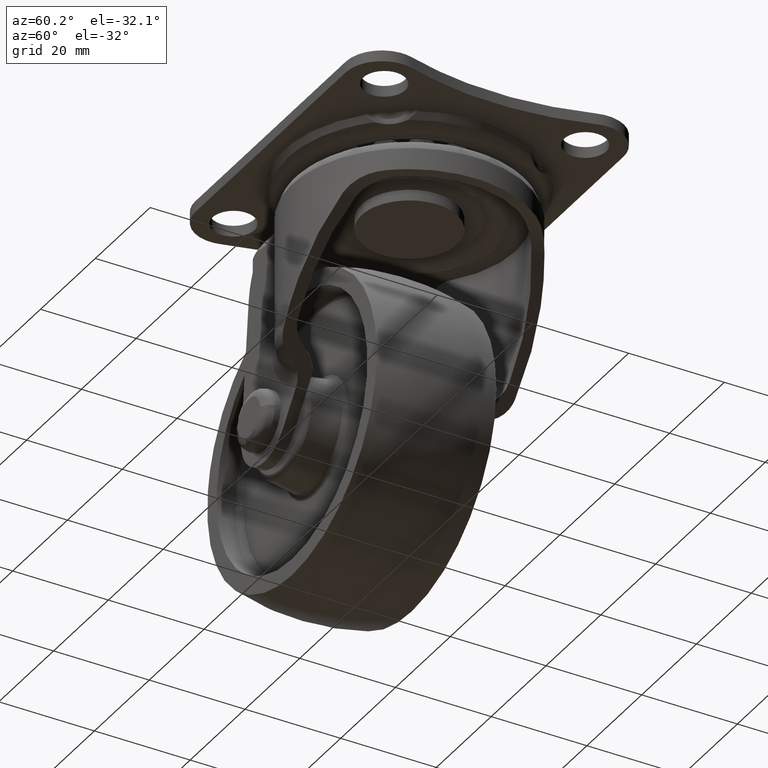
[diagram: clean part render]
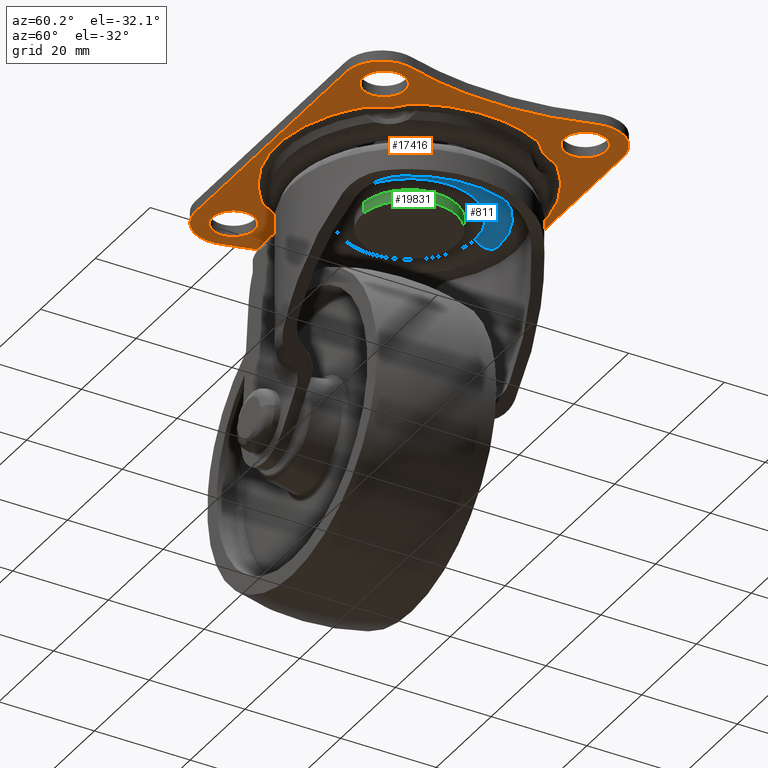
[diagram: same view with three faces highlighted in distinct colors, each labeled with its STEP entity id]
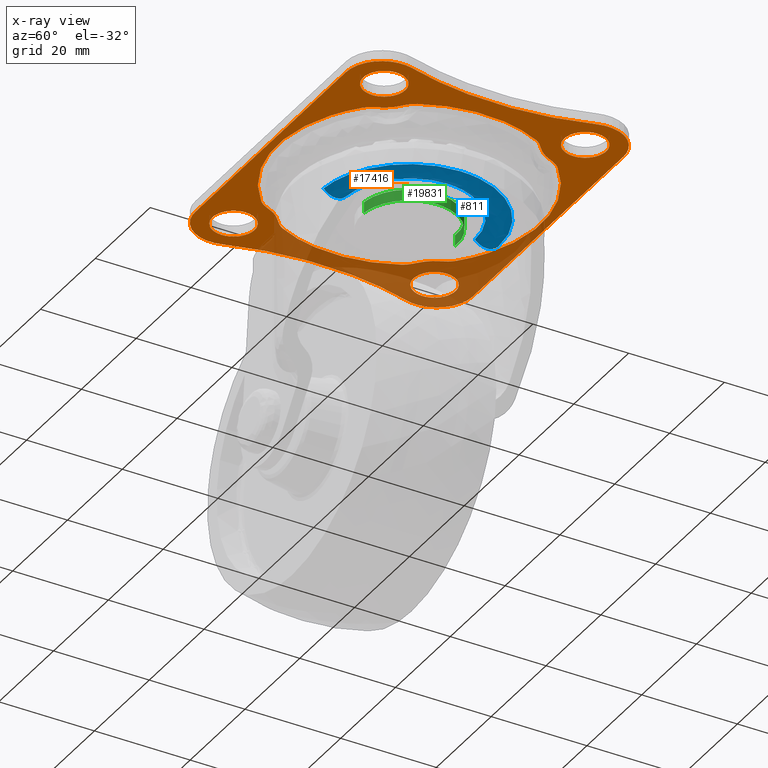
[diagram: x-ray of the same camera — body ghosted, the three highlighted faces saturated]
A machine part, auxiliary view with three faces highlighted in distinct colors.
The next image is the same camera in x-ray (body ghosted, the three faces saturated) — at least one of them is partly hidden behind the body in this view.
Their STEP definitions:

[orange] entity #17416 — the highlighted face is a freeform B-spline surface patch.
#8623=CARTESIAN_POINT('',(-28.019347446086162,16.630757942978150,-2.299999999999955));
#8624=VERTEX_POINT('',#8623);
#8625=CARTESIAN_POINT('',(-23.099997999999999,21.0,-2.299999999999970));
#8626=VERTEX_POINT('',#8625);
#8627=CARTESIAN_POINT('',(-28.019347446086162,16.630757942978146,-2.299999999999955));
#8628=CARTESIAN_POINT('',(-27.760583526995386,16.600000000000001,-2.299999999999970));
#8629=CARTESIAN_POINT('',(-27.499998000000001,16.600000000000001,-2.299999999999970));
#8630=CARTESIAN_POINT('',(-23.099997999999992,16.600000000000001,-2.299999999999970));
#8631=CARTESIAN_POINT('',(-23.099997999999999,21.0,-2.299999999999970));
#8639=(BOUNDED_CURVE()B_SPLINE_CURVE(2,(#8627,#8628,#8629,#8630,#8631),.UNSPECIFIED.,.F.,.U.)B_SPLINE_CURVE_WITH_KNOTS((3,2,3),(0.229562519405999,0.250000000000000,0.500000000000000),.UNSPECIFIED.)CURVE()GEOMETRIC_REPRESENTATION_ITEM()RATIONAL_B_SPLINE_CURVE((0.956026844134880,0.976056002097543,1.0,0.707106781186548,1.0))REPRESENTATION_ITEM(''));
#8640=EDGE_CURVE('',#8624,#8626,#8639,.T.);
#8681=CARTESIAN_POINT('',(-27.231384425862370,25.391793113044940,-2.299999999999970));
#8682=VERTEX_POINT('',#8681);
#8688=CARTESIAN_POINT('',(-23.099997999999999,21.0,-2.299999999999970));
#8689=CARTESIAN_POINT('',(-23.099997999999989,25.139106694037093,-2.299999999999971));
#8690=CARTESIAN_POINT('',(-27.231384425862363,25.391793113044947,-2.299999999999970));
#8698=(BOUNDED_CURVE()B_SPLINE_CURVE(2,(#8688,#8689,#8690),.UNSPECIFIED.,.F.,.U.)B_SPLINE_CURVE_WITH_KNOTS((3,3),(0.500000000000000,0.739332962227490),.UNSPECIFIED.)CURVE()GEOMETRIC_REPRESENTATION_ITEM()RATIONAL_B_SPLINE_CURVE((1.0,0.719603993300128,0.976072041642172))REPRESENTATION_ITEM(''));
#8699=EDGE_CURVE('',#8626,#8682,#8698,.T.);
#8722=CARTESIAN_POINT('',(-31.899998000000000,21.0,-2.299999999999970));
#8723=VERTEX_POINT('',#8722);
#8724=CARTESIAN_POINT('',(-31.899998000000000,21.0,-2.299999999999970));
#8725=CARTESIAN_POINT('',(-31.899998000000004,17.092031017192337,-2.299999999999971));
#8726=CARTESIAN_POINT('',(-28.019347446086162,16.630757942978153,-2.299999999999955));
#8734=(BOUNDED_CURVE()B_SPLINE_CURVE(2,(#8724,#8725,#8726),.UNSPECIFIED.,.F.,.U.)B_SPLINE_CURVE_WITH_KNOTS((3,3),(0.0,0.229562519406000),.UNSPECIFIED.)CURVE()GEOMETRIC_REPRESENTATION_ITEM()RATIONAL_B_SPLINE_CURVE((1.0,0.731050779089005,0.956026844134880))REPRESENTATION_ITEM(''));
#8735=EDGE_CURVE('',#8723,#8624,#8734,.T.);
#8737=CARTESIAN_POINT('',(-27.231384425862363,25.391793113044940,-2.299999999999969));
#8738=CARTESIAN_POINT('',(-27.365565841301425,25.400000000000002,-2.299999999999970));
#8739=CARTESIAN_POINT('',(-27.499998000000001,25.399999999999999,-2.299999999999970));
#8740=CARTESIAN_POINT('',(-31.899997999999993,25.400000000000002,-2.299999999999970));
#8741=CARTESIAN_POINT('',(-31.899998000000000,21.0,-2.299999999999970));
#8749=(BOUNDED_CURVE()B_SPLINE_CURVE(2,(#8737,#8738,#8739,#8740,#8741),.UNSPECIFIED.,.F.,.U.)B_SPLINE_CURVE_WITH_KNOTS((3,2,3),(0.739332962227489,0.750000000000000,1.0),.UNSPECIFIED.)CURVE()GEOMETRIC_REPRESENTATION_ITEM()RATIONAL_B_SPLINE_CURVE((0.976072041642171,0.987502787886419,1.0,0.707106781186548,1.0))REPRESENTATION_ITEM(''));
#8750=EDGE_CURVE('',#8682,#8723,#8749,.T.);
#8809=CARTESIAN_POINT('',(26.980650553913840,16.630757942978150,-2.299999999999955));
#8810=VERTEX_POINT('',#8809);
#8811=CARTESIAN_POINT('',(31.899999999999999,21.0,-2.299999999999970));
#8812=VERTEX_POINT('',#8811);
#8813=CARTESIAN_POINT('',(26.980650553913840,16.630757942978153,-2.299999999999955));
#8814=CARTESIAN_POINT('',(27.239414473004611,16.599999999999998,-2.299999999999970));
#8815=CARTESIAN_POINT('',(27.500000000000000,16.600000000000001,-2.299999999999970));
#8816=CARTESIAN_POINT('',(31.900000000000006,16.600000000000001,-2.299999999999970));
#8817=CARTESIAN_POINT('',(31.899999999999999,21.0,-2.299999999999970));
#8825=(BOUNDED_CURVE()B_SPLINE_CURVE(2,(#8813,#8814,#8815,#8816,#8817),.UNSPECIFIED.,.F.,.U.)B_SPLINE_CURVE_WITH_KNOTS((3,2,3),(0.229562519406000,0.250000000000000,0.500000000000000),.UNSPECIFIED.)CURVE()GEOMETRIC_REPRESENTATION_ITEM()RATIONAL_B_SPLINE_CURVE((0.956026844134880,0.976056002097543,1.0,0.707106781186548,1.0))REPRESENTATION_ITEM(''));
#8826=EDGE_CURVE('',#8810,#8812,#8825,.T.);
#8867=CARTESIAN_POINT('',(27.768613574137628,25.391793113044951,-2.299999999999970));
#8868=VERTEX_POINT('',#8867);
#8874=CARTESIAN_POINT('',(31.899999999999999,21.0,-2.299999999999970));
#8875=CARTESIAN_POINT('',(31.899999999999995,25.139106694037093,-2.299999999999971));
#8876=CARTESIAN_POINT('',(27.768613574137635,25.391793113044947,-2.299999999999971));
#8884=(BOUNDED_CURVE()B_SPLINE_CURVE(2,(#8874,#8875,#8876),.UNSPECIFIED.,.F.,.U.)B_SPLINE_CURVE_WITH_KNOTS((3,3),(0.500000000000000,0.739332962227490),.UNSPECIFIED.)CURVE()GEOMETRIC_REPRESENTATION_ITEM()RATIONAL_B_SPLINE_CURVE((1.0,0.719603993300128,0.976072041642172))REPRESENTATION_ITEM(''));
#8885=EDGE_CURVE('',#8812,#8868,#8884,.T.);
#8908=CARTESIAN_POINT('',(23.100000000000001,21.0,-2.299999999999970));
#8909=VERTEX_POINT('',#8908);
#8910=CARTESIAN_POINT('',(23.100000000000001,21.0,-2.299999999999970));
#8911=CARTESIAN_POINT('',(23.099999999999998,17.092031017192330,-2.299999999999970));
#8912=CARTESIAN_POINT('',(26.980650553913840,16.630757942978146,-2.299999999999955));
#8920=(BOUNDED_CURVE()B_SPLINE_CURVE(2,(#8910,#8911,#8912),.UNSPECIFIED.,.F.,.U.)B_SPLINE_CURVE_WITH_KNOTS((3,3),(0.0,0.229562519405999),.UNSPECIFIED.)CURVE()GEOMETRIC_REPRESENTATION_ITEM()RATIONAL_B_SPLINE_CURVE((1.0,0.731050779089005,0.956026844134880))REPRESENTATION_ITEM(''));
#8921=EDGE_CURVE('',#8909,#8810,#8920,.T.);
#8923=CARTESIAN_POINT('',(27.768613574137628,25.391793113044947,-2.299999999999970));
#8924=CARTESIAN_POINT('',(27.634432158698573,25.399999999999999,-2.299999999999970));
#8925=CARTESIAN_POINT('',(27.500000000000000,25.399999999999999,-2.299999999999970));
#8926=CARTESIAN_POINT('',(23.100000000000001,25.400000000000002,-2.299999999999970));
#8927=CARTESIAN_POINT('',(23.100000000000001,21.0,-2.299999999999970));
#8935=(BOUNDED_CURVE()B_SPLINE_CURVE(2,(#8923,#8924,#8925,#8926,#8927),.UNSPECIFIED.,.F.,.U.)B_SPLINE_CURVE_WITH_KNOTS((3,2,3),(0.739332962227490,0.750000000000000,1.0),.UNSPECIFIED.)CURVE()GEOMETRIC_REPRESENTATION_ITEM()RATIONAL_B_SPLINE_CURVE((0.976072041642171,0.987502787886419,1.0,0.707106781186548,1.0))REPRESENTATION_ITEM(''));
#8936=EDGE_CURVE('',#8868,#8909,#8935,.T.);
#8995=CARTESIAN_POINT('',(26.980650553913840,-25.369242057021861,-2.299999999999955));
#8996=VERTEX_POINT('',#8995);
#8997=CARTESIAN_POINT('',(31.899999999999999,-21.0,-2.299999999999970));
#8998=VERTEX_POINT('',#8997);
#8999=CARTESIAN_POINT('',(26.980650553913840,-25.369242057021861,-2.299999999999955));
#9000=CARTESIAN_POINT('',(27.239414473004619,-25.400000000000006,-2.299999999999970));
#9001=CARTESIAN_POINT('',(27.500000000000000,-25.399999999999999,-2.299999999999970));
#9002=CARTESIAN_POINT('',(31.900000000000006,-25.400000000000002,-2.299999999999970));
#9003=CARTESIAN_POINT('',(31.899999999999999,-21.0,-2.299999999999970));
#9011=(BOUNDED_CURVE()B_SPLINE_CURVE(2,(#8999,#9000,#9001,#9002,#9003),.UNSPECIFIED.,.F.,.U.)B_SPLINE_CURVE_WITH_KNOTS((3,2,3),(0.229562519405999,0.250000000000000,0.500000000000000),.UNSPECIFIED.)CURVE()GEOMETRIC_REPRESENTATION_ITEM()RATIONAL_B_SPLINE_CURVE((0.956026844134880,0.976056002097543,1.0,0.707106781186548,1.0))REPRESENTATION_ITEM(''));
#9012=EDGE_CURVE('',#8996,#8998,#9011,.T.);
#9053=CARTESIAN_POINT('',(27.768613574137628,-16.608206886955060,-2.299999999999970));
#9054=VERTEX_POINT('',#9053);
#9060=CARTESIAN_POINT('',(31.899999999999999,-21.0,-2.299999999999970));
#9061=CARTESIAN_POINT('',(31.899999999999995,-16.860893305962907,-2.299999999999971));
#9062=CARTESIAN_POINT('',(27.768613574137635,-16.608206886955063,-2.299999999999971));
#9070=(BOUNDED_CURVE()B_SPLINE_CURVE(2,(#9060,#9061,#9062),.UNSPECIFIED.,.F.,.U.)B_SPLINE_CURVE_WITH_KNOTS((3,3),(0.500000000000000,0.739332962227490),.UNSPECIFIED.)CURVE()GEOMETRIC_REPRESENTATION_ITEM()RATIONAL_B_SPLINE_CURVE((1.0,0.719603993300128,0.976072041642172))REPRESENTATION_ITEM(''));
#9071=EDGE_CURVE('',#8998,#9054,#9070,.T.);
#9094=CARTESIAN_POINT('',(23.100000000000001,-21.0,-2.299999999999970));
#9095=VERTEX_POINT('',#9094);
#9096=CARTESIAN_POINT('',(23.100000000000001,-21.0,-2.299999999999970));
#9097=CARTESIAN_POINT('',(23.099999999999998,-24.907968982807663,-2.299999999999970));
#9098=CARTESIAN_POINT('',(26.980650553913840,-25.369242057021861,-2.299999999999955));
#9106=(BOUNDED_CURVE()B_SPLINE_CURVE(2,(#9096,#9097,#9098),.UNSPECIFIED.,.F.,.U.)B_SPLINE_CURVE_WITH_KNOTS((3,3),(0.0,0.229562519405999),.UNSPECIFIED.)CURVE()GEOMETRIC_REPRESENTATION_ITEM()RATIONAL_B_SPLINE_CURVE((1.0,0.731050779089005,0.956026844134880))REPRESENTATION_ITEM(''));
#9107=EDGE_CURVE('',#9095,#8996,#9106,.T.);
#9109=CARTESIAN_POINT('',(27.768613574137635,-16.608206886955063,-2.299999999999971));
#9110=CARTESIAN_POINT('',(27.634432158698576,-16.600000000000005,-2.299999999999970));
#9111=CARTESIAN_POINT('',(27.500000000000000,-16.600000000000001,-2.299999999999970));
#9112=CARTESIAN_POINT('',(23.100000000000001,-16.600000000000001,-2.299999999999970));
#9113=CARTESIAN_POINT('',(23.100000000000001,-21.0,-2.299999999999970));
#9121=(BOUNDED_CURVE()B_SPLINE_CURVE(2,(#9109,#9110,#9111,#9112,#9113),.UNSPECIFIED.,.F.,.U.)B_SPLINE_CURVE_WITH_KNOTS((3,2,3),(0.739332962227489,0.750000000000000,1.0),.UNSPECIFIED.)CURVE()GEOMETRIC_REPRESENTATION_ITEM()RATIONAL_B_SPLINE_CURVE((0.976072041642171,0.987502787886419,1.0,0.707106781186548,1.0))REPRESENTATION_ITEM(''));
#9122=EDGE_CURVE('',#9054,#9095,#9121,.T.);
#9181=CARTESIAN_POINT('',(-28.019351446086159,-25.369242057021861,-2.299999999999955));
#9182=VERTEX_POINT('',#9181);
#9183=CARTESIAN_POINT('',(-23.100002000000000,-21.0,-2.299999999999970));
#9184=VERTEX_POINT('',#9183);
#9185=CARTESIAN_POINT('',(-28.019351446086166,-25.369242057021861,-2.299999999999955));
#9186=CARTESIAN_POINT('',(-27.760587526995391,-25.400000000000006,-2.299999999999970));
#9187=CARTESIAN_POINT('',(-27.500001999999999,-25.399999999999999,-2.299999999999970));
#9188=CARTESIAN_POINT('',(-23.100002000000000,-25.400000000000002,-2.299999999999970));
#9189=CARTESIAN_POINT('',(-23.100002000000000,-21.0,-2.299999999999970));
#9197=(BOUNDED_CURVE()B_SPLINE_CURVE(2,(#9185,#9186,#9187,#9188,#9189),.UNSPECIFIED.,.F.,.U.)B_SPLINE_CURVE_WITH_KNOTS((3,2,3),(0.229562519405999,0.250000000000000,0.500000000000000),.UNSPECIFIED.)CURVE()GEOMETRIC_REPRESENTATION_ITEM()RATIONAL_B_SPLINE_CURVE((0.956026844134880,0.976056002097543,1.0,0.707106781186548,1.0))REPRESENTATION_ITEM(''));
#9198=EDGE_CURVE('',#9182,#9184,#9197,.T.);
#9239=CARTESIAN_POINT('',(-27.231388425862360,-16.608206886955060,-2.299999999999970));
#9240=VERTEX_POINT('',#9239);
#9246=CARTESIAN_POINT('',(-23.100002000000000,-21.0,-2.299999999999970));
#9247=CARTESIAN_POINT('',(-23.100002000000000,-16.860893305962907,-2.299999999999971));
#9248=CARTESIAN_POINT('',(-27.231388425862367,-16.608206886955063,-2.299999999999971));
#9256=(BOUNDED_CURVE()B_SPLINE_CURVE(2,(#9246,#9247,#9248),.UNSPECIFIED.,.F.,.U.)B_SPLINE_CURVE_WITH_KNOTS((3,3),(0.500000000000000,0.739332962227490),.UNSPECIFIED.)CURVE()GEOMETRIC_REPRESENTATION_ITEM()RATIONAL_B_SPLINE_CURVE((1.0,0.719603993300128,0.976072041642172))REPRESENTATION_ITEM(''));
#9257=EDGE_CURVE('',#9184,#9240,#9256,.T.);
#9280=CARTESIAN_POINT('',(-31.900002000000001,-21.0,-2.299999999999970));
#9281=VERTEX_POINT('',#9280);
#9282=CARTESIAN_POINT('',(-31.900002000000001,-21.0,-2.299999999999970));
#9283=CARTESIAN_POINT('',(-31.900001999999997,-24.907968982807663,-2.299999999999970));
#9284=CARTESIAN_POINT('',(-28.019351446086166,-25.369242057021861,-2.299999999999955));
#9292=(BOUNDED_CURVE()B_SPLINE_CURVE(2,(#9282,#9283,#9284),.UNSPECIFIED.,.F.,.U.)B_SPLINE_CURVE_WITH_KNOTS((3,3),(0.0,0.229562519405999),.UNSPECIFIED.)CURVE()GEOMETRIC_REPRESENTATION_ITEM()RATIONAL_B_SPLINE_CURVE((1.0,0.731050779089005,0.956026844134880))REPRESENTATION_ITEM(''));
#9293=EDGE_CURVE('',#9281,#9182,#9292,.T.);
#9295=CARTESIAN_POINT('',(-27.231388425862363,-16.608206886955056,-2.299999999999970));
#9296=CARTESIAN_POINT('',(-27.365569841301429,-16.600000000000001,-2.299999999999971));
#9297=CARTESIAN_POINT('',(-27.500001999999999,-16.600000000000001,-2.299999999999970));
#9298=CARTESIAN_POINT('',(-31.900002000000004,-16.600000000000001,-2.299999999999970));
#9299=CARTESIAN_POINT('',(-31.900002000000001,-21.0,-2.299999999999970));
#9307=(BOUNDED_CURVE()B_SPLINE_CURVE(2,(#9295,#9296,#9297,#9298,#9299),.UNSPECIFIED.,.F.,.U.)B_SPLINE_CURVE_WITH_KNOTS((3,2,3),(0.739332962227489,0.750000000000000,1.0),.UNSPECIFIED.)CURVE()GEOMETRIC_REPRESENTATION_ITEM()RATIONAL_B_SPLINE_CURVE((0.976072041642171,0.987502787886419,1.0,0.707106781186548,1.0))REPRESENTATION_ITEM(''));
#9308=EDGE_CURVE('',#9240,#9281,#9307,.T.);
#13032=CARTESIAN_POINT('',(-20.041871087194352,17.839887166575799,-2.300000000000000));
#13033=VERTEX_POINT('',#13032);
#13034=CARTESIAN_POINT('',(-18.431660359186498,20.385477353775698,-2.300000000000000));
#13035=VERTEX_POINT('',#13034);
#13036=CARTESIAN_POINT('',(-20.041871087194352,17.839887166575799,-2.300000000000000));
#13037=CARTESIAN_POINT('',(-19.943122125898700,18.072942921914230,-2.300000000000000));
#13038=CARTESIAN_POINT('',(-19.841475361582610,18.304416152261371,-2.300000000000000));
#13039=CARTESIAN_POINT('',(-19.622509370609869,18.758803693265790,-2.300000000000000));
#13040=CARTESIAN_POINT('',(-19.505301061967060,18.981778577581011,-2.300000000000000));
#13041=CARTESIAN_POINT('',(-19.311722554155899,19.306538653842779,-2.299999999999999));
#13042=CARTESIAN_POINT('',(-19.244238507529001,19.413176680289851,-2.300000000000000));
#13043=CARTESIAN_POINT('',(-19.102219552595852,19.622602173039269,-2.300000000000000));
#13044=CARTESIAN_POINT('',(-19.027550720466490,19.725568180645261,-2.299999999999999));
#13045=CARTESIAN_POINT('',(-18.791856185990270,20.026408306027719,-2.300000000000000));
#13046=CARTESIAN_POINT('',(-18.620935047176950,20.214343428232151,-2.300000000000000));
#13047=CARTESIAN_POINT('',(-18.431660359186498,20.385477353775698,-2.300000000000000));
#13048=B_SPLINE_CURVE_WITH_KNOTS('',3,(#13036,#13037,#13038,#13039,#13040,#13041,#13042,#13043,#13044,#13045,#13046,#13047),.UNSPECIFIED.,.F.,.U.,(4,2,2,2,2,4),(0.0,0.249999999999999,0.499999999999999,0.624999999999999,0.749999999999998,1.0),.UNSPECIFIED.);
#13049=EDGE_CURVE('',#13033,#13035,#13048,.T.);
#13139=CARTESIAN_POINT('',(-24.519362933259149,12.413485887728219,-2.300000000000000));
#13140=VERTEX_POINT('',#13139);
#13141=CARTESIAN_POINT('',(-22.487592013057451,14.637157382707420,-2.300000000000000));
#13142=VERTEX_POINT('',#13141);
#13143=CARTESIAN_POINT('',(-24.519362933259149,12.413485887728219,-2.300000000000000));
#13144=CARTESIAN_POINT('',(-24.404143613405779,12.641069367981810,-2.299999999999999));
#13145=CARTESIAN_POINT('',(-24.267943702487560,12.855294105621351,-2.300000000000000));
#13146=CARTESIAN_POINT('',(-24.078023820885729,13.110550767878429,-2.300000000000000));
#13147=CARTESIAN_POINT('',(-24.039013107996649,13.161001437698900,-2.300000000000000));
#13148=CARTESIAN_POINT('',(-23.959570388153310,13.260175114234061,-2.299999999999999));
#13149=CARTESIAN_POINT('',(-23.919088653360930,13.308967885241200,-2.299999999999999));
#13150=CARTESIAN_POINT('',(-23.795554167212220,13.453164339923370,-2.299999999999999));
#13151=CARTESIAN_POINT('',(-23.710415707992489,13.546389897528011,-2.299999999999999));
#13152=CARTESIAN_POINT('',(-23.448001306625802,13.818757418244450,-2.299999999999999));
#13153=CARTESIAN_POINT('',(-23.263716885079660,13.990580354583139,-2.300000000000000));
#13154=CARTESIAN_POINT('',(-22.882971590171248,14.321510233994710,-2.300000000000000));
#13155=CARTESIAN_POINT('',(-22.686423130712271,14.480525710011969,-2.300000000000000));
#13156=CARTESIAN_POINT('',(-22.487592013057451,14.637157382707420,-2.300000000000000));
#13157=B_SPLINE_CURVE_WITH_KNOTS('',3,(#13143,#13144,#13145,#13146,#13147,#13148,#13149,#13150,#13151,#13152,#13153,#13154,#13155,#13156),.UNSPECIFIED.,.F.,.U.,(4,2,2,2,2,2,4),(0.0,0.249999999999999,0.312499999999999,0.374999999999999,0.499999999999999,0.750000000000000,1.0),.UNSPECIFIED.);
#13158=EDGE_CURVE('',#13140,#13142,#13157,.T.);
#13208=CARTESIAN_POINT('',(-20.041871087194352,17.839887166575799,-2.300000000000000));
#13209=CARTESIAN_POINT('',(-20.853463047777588,15.924462691030181,-2.300000000000000));
#13210=CARTESIAN_POINT('',(-22.487592013057458,14.637157382707430,-2.300000000000000));
#13218=(BOUNDED_CURVE()B_SPLINE_CURVE(2,(#13208,#13209,#13210),.UNSPECIFIED.,.F.,.U.)CURVE()GEOMETRIC_REPRESENTATION_ITEM()QUASI_UNIFORM_CURVE()RATIONAL_B_SPLINE_CURVE((1.0,0.968567441824568,1.0))REPRESENTATION_ITEM(''));
#13219=EDGE_CURVE('',#13033,#13142,#13218,.T.);
#13255=CARTESIAN_POINT('',(18.431660359186498,20.385477353775698,-2.300000000000000));
#13256=VERTEX_POINT('',#13255);
#13286=CARTESIAN_POINT('',(18.431660359186509,20.385477353775698,-2.300000000000000));
#13287=CARTESIAN_POINT('',(1.040834E-014,37.050581520859858,-2.299999999999999));
#13288=CARTESIAN_POINT('',(-18.431660359186491,20.385477353775709,-2.300000000000000));
#13296=(BOUNDED_CURVE()B_SPLINE_CURVE(2,(#13286,#13287,#13288),.UNSPECIFIED.,.F.,.U.)CURVE()GEOMETRIC_REPRESENTATION_ITEM()QUASI_UNIFORM_CURVE()RATIONAL_B_SPLINE_CURVE((1.0,0.741759177486222,1.0))REPRESENTATION_ITEM(''));
#13297=EDGE_CURVE('',#13256,#13035,#13296,.T.);
#13321=CARTESIAN_POINT('',(-24.519362933259149,-12.413485887728219,-2.300000000000000));
#13322=VERTEX_POINT('',#13321);
#13336=CARTESIAN_POINT('',(-24.519362933259121,12.413485887728230,-2.300000000000000));
#13337=CARTESIAN_POINT('',(-30.803972868038752,6.938894E-015,-2.300000000000000));
#13338=CARTESIAN_POINT('',(-24.519362933259121,-12.413485887728211,-2.300000000000000));
#13346=(BOUNDED_CURVE()B_SPLINE_CURVE(2,(#13336,#13337,#13338),.UNSPECIFIED.,.F.,.U.)CURVE()GEOMETRIC_REPRESENTATION_ITEM()QUASI_UNIFORM_CURVE()RATIONAL_B_SPLINE_CURVE((1.0,0.892177414648170,1.0))REPRESENTATION_ITEM(''));
#13347=EDGE_CURVE('',#13140,#13322,#13346,.T.);
#13424=CARTESIAN_POINT('',(20.041871087194352,17.839887166575799,-2.300000000000000));
#13425=VERTEX_POINT('',#13424);
#13457=CARTESIAN_POINT('',(18.431660359186498,20.385477353775698,-2.300000000000000));
#13458=CARTESIAN_POINT('',(18.620873998033119,20.214398626207860,-2.299999999999999));
#13459=CARTESIAN_POINT('',(18.791675877387242,20.026597209919391,-2.300000000000000));
#13460=CARTESIAN_POINT('',(18.987916597564269,19.776167369847009,-2.300000000000000));
#13461=CARTESIAN_POINT('',(19.026314924066138,19.725249059512670,-2.300000000000000));
#13462=CARTESIAN_POINT('',(19.101070638384371,19.622496215121970,-2.300000000000000));
#13463=CARTESIAN_POINT('',(19.137482234642420,19.570595338324971,-2.299999999999999));
#13464=CARTESIAN_POINT('',(19.244062028670001,19.413451664204860,-2.300000000000000));
#13465=CARTESIAN_POINT('',(19.311579773305070,19.306770288190119,-2.300000000000000));
#13466=CARTESIAN_POINT('',(19.505238864051890,18.981898712091251,-2.300000000000000));
#13467=CARTESIAN_POINT('',(19.622474051004289,18.758874542062792,-2.300000000000000));
#13468=CARTESIAN_POINT('',(19.841470966018260,18.304427718004568,-2.300000000000000));
#13469=CARTESIAN_POINT('',(19.943121392374909,18.072944653072788,-2.299999999999999));
#13470=CARTESIAN_POINT('',(20.041871087194352,17.839887166575799,-2.300000000000000));
#13471=B_SPLINE_CURVE_WITH_KNOTS('',3,(#13457,#13458,#13459,#13460,#13461,#13462,#13463,#13464,#13465,#13466,#13467,#13468,#13469,#13470),.UNSPECIFIED.,.F.,.U.,(4,2,2,2,2,2,4),(0.0,0.249999999999999,0.312499999999998,0.374999999999997,0.499999999999998,0.749999999999999,1.0),.UNSPECIFIED.);
#13472=EDGE_CURVE('',#13256,#13425,#13471,.T.);
#13537=CARTESIAN_POINT('',(-22.487592013057451,-14.637157382707420,-2.300000000000000));
#13538=VERTEX_POINT('',#13537);
#13552=CARTESIAN_POINT('',(-22.487592013057451,-14.637157382707420,-2.300000000000000));
#13553=CARTESIAN_POINT('',(-22.686421653790330,-14.480526873484690,-2.300000000000000));
#13554=CARTESIAN_POINT('',(-22.882961589977679,-14.321517519839251,-2.300000000000000));
#13555=CARTESIAN_POINT('',(-23.263657836547701,-13.990633083109090,-2.300000000000000));
#13556=CARTESIAN_POINT('',(-23.447901789009130,-13.818849054073540,-2.300000000000000));
#13557=CARTESIAN_POINT('',(-23.710229843713559,-13.546588631802980,-2.300000000000000));
#13558=CARTESIAN_POINT('',(-23.795335356219081,-13.453406997481411,-2.299999999999999));
#13559=CARTESIAN_POINT('',(-23.959975129518650,-13.261255584211790,-2.299999999999999));
#13560=CARTESIAN_POINT('',(-24.039646367318721,-13.162109595481621,-2.299999999999999));
#13561=CARTESIAN_POINT('',(-24.267808942238851,-12.855517791892680,-2.300000000000000));
#13562=CARTESIAN_POINT('',(-24.404106438279982,-12.641142797025831,-2.299999999999999));
#13563=CARTESIAN_POINT('',(-24.519362933259149,-12.413485887728219,-2.300000000000000));
#13564=B_SPLINE_CURVE_WITH_KNOTS('',3,(#13552,#13553,#13554,#13555,#13556,#13557,#13558,#13559,#13560,#13561,#13562,#13563),.UNSPECIFIED.,.F.,.U.,(4,2,2,2,2,4),(0.0,0.249999999999999,0.499999999999997,0.624999999999997,0.749999999999998,1.0),.UNSPECIFIED.);
#13565=EDGE_CURVE('',#13538,#13322,#13564,.T.);
#13603=CARTESIAN_POINT('',(22.487592013057451,14.637157382707420,-2.300000000000000));
#13604=VERTEX_POINT('',#13603);
#13634=CARTESIAN_POINT('',(22.487592013057458,14.637157382707420,-2.300000000000000));
#13635=CARTESIAN_POINT('',(20.853463047777595,15.924462691030177,-2.300000000000000));
#13636=CARTESIAN_POINT('',(20.041871087194352,17.839887166575799,-2.300000000000000));
#13644=(BOUNDED_CURVE()B_SPLINE_CURVE(2,(#13634,#13635,#13636),.UNSPECIFIED.,.F.,.U.)CURVE()GEOMETRIC_REPRESENTATION_ITEM()QUASI_UNIFORM_CURVE()RATIONAL_B_SPLINE_CURVE((1.0,0.968567441824568,1.0))REPRESENTATION_ITEM(''));
#13645=EDGE_CURVE('',#13604,#13425,#13644,.T.);
#14087=CARTESIAN_POINT('',(-20.041871087194352,-17.839887166575799,-2.300000000000000));
#14088=VERTEX_POINT('',#14087);
#14102=CARTESIAN_POINT('',(-22.487592013057458,-14.637157382707430,-2.300000000000000));
#14103=CARTESIAN_POINT('',(-20.853463047777588,-15.924462691030183,-2.300000000000000));
#14104=CARTESIAN_POINT('',(-20.041871087194352,-17.839887166575799,-2.300000000000000));
#14112=(BOUNDED_CURVE()B_SPLINE_CURVE(2,(#14102,#14103,#14104),.UNSPECIFIED.,.F.,.U.)CURVE()GEOMETRIC_REPRESENTATION_ITEM()QUASI_UNIFORM_CURVE()RATIONAL_B_SPLINE_CURVE((1.0,0.968567441824569,1.0))REPRESENTATION_ITEM(''));
#14113=EDGE_CURVE('',#13538,#14088,#14112,.T.);
#14190=CARTESIAN_POINT('',(24.519362933259149,12.413485887728219,-2.300000000000000));
#14191=VERTEX_POINT('',#14190);
#14192=CARTESIAN_POINT('',(22.487592013057451,14.637157382707420,-2.300000000000000));
#14193=CARTESIAN_POINT('',(22.686428887375779,14.480521175138261,-2.299999999999999));
#14194=CARTESIAN_POINT('',(22.882960011918961,14.321516976344720,-2.300000000000000));
#14195=CARTESIAN_POINT('',(23.263565338011681,13.990715393369801,-2.299999999999999));
#14196=CARTESIAN_POINT('',(23.447727332216381,13.819008171720011,-2.299999999999999));
#14197=CARTESIAN_POINT('',(23.797255185359010,13.456290209953970,-2.299999999999999));
#14198=CARTESIAN_POINT('',(23.962718230177021,13.265379279155090,-2.299999999999999));
#14199=CARTESIAN_POINT('',(24.191091657077450,12.958656690426229,-2.300000000000000));
#14200=CARTESIAN_POINT('',(24.263431899477240,12.853580501608089,-2.300000000000001));
#14201=CARTESIAN_POINT('',(24.398666942626441,12.638033970022400,-2.300000000000000));
#14202=CARTESIAN_POINT('',(24.461684784400632,12.527412908548280,-2.300000000000000));
#14203=CARTESIAN_POINT('',(24.519362933259149,12.413485887728219,-2.300000000000000));
#14204=B_SPLINE_CURVE_WITH_KNOTS('',3,(#14192,#14193,#14194,#14195,#14196,#14197,#14198,#14199,#14200,#14201,#14202,#14203),.UNSPECIFIED.,.F.,.U.,(4,2,2,2,2,4),(0.0,0.249999999999999,0.499999999999998,0.749999999999998,0.874999999999999,1.0),.UNSPECIFIED.);
#14205=EDGE_CURVE('',#13604,#14191,#14204,.T.);
#14283=CARTESIAN_POINT('',(-18.431660359186498,-20.385477353775698,-2.300000000000000));
#14284=VERTEX_POINT('',#14283);
#14298=CARTESIAN_POINT('',(-18.431660359186498,-20.385477353775698,-2.300000000000000));
#14299=CARTESIAN_POINT('',(-18.620873998033041,-20.214398626207942,-2.299999999999999));
#14300=CARTESIAN_POINT('',(-18.791675877387110,-20.026597209919530,-2.300000000000000));
#14301=CARTESIAN_POINT('',(-18.987916597564070,-19.776167369847251,-2.299999999999999));
#14302=CARTESIAN_POINT('',(-19.026314924065929,-19.725249059512940,-2.300000000000000));
#14303=CARTESIAN_POINT('',(-19.101070638384140,-19.622496215122268,-2.300000000000000));
#14304=CARTESIAN_POINT('',(-19.137482234642199,-19.570595338325301,-2.299999999999999));
#14305=CARTESIAN_POINT('',(-19.244062028669770,-19.413451664205219,-2.300000000000000));
#14306=CARTESIAN_POINT('',(-19.311579773304832,-19.306770288190499,-2.300000000000000));
#14307=CARTESIAN_POINT('',(-19.505238864051680,-18.981898712091620,-2.299999999999999));
#14308=CARTESIAN_POINT('',(-19.622474051004112,-18.758874542063140,-2.299999999999999));
#14309=CARTESIAN_POINT('',(-19.841470966018171,-18.304427718004781,-2.300000000000000));
#14310=CARTESIAN_POINT('',(-19.943121392380821,-18.072944653077471,-2.300000000000000));
#14311=CARTESIAN_POINT('',(-20.041871087194352,-17.839887166575799,-2.300000000000000));
#14312=B_SPLINE_CURVE_WITH_KNOTS('',3,(#14298,#14299,#14300,#14301,#14302,#14303,#14304,#14305,#14306,#14307,#14308,#14309,#14310,#14311),.UNSPECIFIED.,.F.,.U.,(4,2,2,2,2,2,4),(0.0,0.249999999999997,0.312499999999998,0.374999999999999,0.500000000000001,0.750000000000001,1.0),.UNSPECIFIED.);
#14313=EDGE_CURVE('',#14284,#14088,#14312,.T.);
#14337=CARTESIAN_POINT('',(24.519362933259149,-12.413485887728219,-2.300000000000000));
#14338=VERTEX_POINT('',#14337);
#14368=CARTESIAN_POINT('',(24.519362933259131,-12.413485887728211,-2.300000000000000));
#14369=CARTESIAN_POINT('',(30.803972868038748,-6.938894E-015,-2.300000000000000));
#14370=CARTESIAN_POINT('',(24.519362933259131,12.413485887728200,-2.300000000000000));
#14378=(BOUNDED_CURVE()B_SPLINE_CURVE(2,(#14368,#14369,#14370),.UNSPECIFIED.,.F.,.U.)CURVE()GEOMETRIC_REPRESENTATION_ITEM()QUASI_UNIFORM_CURVE()RATIONAL_B_SPLINE_CURVE((1.0,0.892177414648170,1.0))REPRESENTATION_ITEM(''));
#14379=EDGE_CURVE('',#14338,#14191,#14378,.T.);
#14403=CARTESIAN_POINT('',(18.431660359186498,-20.385477353775698,-2.300000000000000));
#14404=VERTEX_POINT('',#14403);
#14418=CARTESIAN_POINT('',(-18.431660359186491,-20.385477353775709,-2.300000000000000));
#14419=CARTESIAN_POINT('',(1.387779E-014,-37.050581520859843,-2.300000000000000));
#14420=CARTESIAN_POINT('',(18.431660359186498,-20.385477353775698,-2.300000000000000));
#14428=(BOUNDED_CURVE()B_SPLINE_CURVE(2,(#14418,#14419,#14420),.UNSPECIFIED.,.F.,.U.)CURVE()GEOMETRIC_REPRESENTATION_ITEM()QUASI_UNIFORM_CURVE()RATIONAL_B_SPLINE_CURVE((1.0,0.741759177486222,1.0))REPRESENTATION_ITEM(''));
#14429=EDGE_CURVE('',#14284,#14404,#14428,.T.);
#14506=CARTESIAN_POINT('',(22.487592013057451,-14.637157382707420,-2.300000000000000));
#14507=VERTEX_POINT('',#14506);
#14539=CARTESIAN_POINT('',(24.519362933259149,-12.413485887728219,-2.300000000000000));
#14540=CARTESIAN_POINT('',(24.404143613405779,-12.641069367981810,-2.299999999999999));
#14541=CARTESIAN_POINT('',(24.267943702487560,-12.855294105621351,-2.300000000000000));
#14542=CARTESIAN_POINT('',(24.078023820885729,-13.110550767878429,-2.300000000000000));
#14543=CARTESIAN_POINT('',(24.039013107996649,-13.161001437698900,-2.300000000000000));
#14544=CARTESIAN_POINT('',(23.959570388153310,-13.260175114234061,-2.299999999999999));
#14545=CARTESIAN_POINT('',(23.919088653360930,-13.308967885241200,-2.299999999999999));
#14546=CARTESIAN_POINT('',(23.795554167212220,-13.453164339923370,-2.299999999999999));
#14547=CARTESIAN_POINT('',(23.710415707992489,-13.546389897528011,-2.299999999999999));
#14548=CARTESIAN_POINT('',(23.448001306625802,-13.818757418244450,-2.299999999999999));
#14549=CARTESIAN_POINT('',(23.263716885079660,-13.990580354583139,-2.300000000000000));
#14550=CARTESIAN_POINT('',(22.882971590171248,-14.321510233994710,-2.300000000000000));
#14551=CARTESIAN_POINT('',(22.686423130712271,-14.480525710011969,-2.300000000000000));
#14552=CARTESIAN_POINT('',(22.487592013057451,-14.637157382707420,-2.300000000000000));
#14553=B_SPLINE_CURVE_WITH_KNOTS('',3,(#14539,#14540,#14541,#14542,#14543,#14544,#14545,#14546,#14547,#14548,#14549,#14550,#14551,#14552),.UNSPECIFIED.,.F.,.U.,(4,2,2,2,2,2,4),(0.0,0.249999999999999,0.312499999999999,0.374999999999999,0.499999999999999,0.750000000000000,1.0),.UNSPECIFIED.);
#14554=EDGE_CURVE('',#14338,#14507,#14553,.T.);
#14619=CARTESIAN_POINT('',(20.041871087194352,-17.839887166575799,-2.300000000000000));
#14620=VERTEX_POINT('',#14619);
#14634=CARTESIAN_POINT('',(20.041871087194352,-17.839887166575799,-2.300000000000000));
#14635=CARTESIAN_POINT('',(19.943119301867199,-18.072949586863260,-2.300000000000000));
#14636=CARTESIAN_POINT('',(19.841475280444971,-18.304413214638590,-2.300000000000000));
#14637=CARTESIAN_POINT('',(19.622559927434580,-18.758701885489899,-2.300000000000000));
#14638=CARTESIAN_POINT('',(19.505398782757641,-18.981587838534072,-2.299999999999999));
#14639=CARTESIAN_POINT('',(19.247492133404620,-19.414322600720531,-2.300000000000000));
#14640=CARTESIAN_POINT('',(19.106868743266521,-19.624238913276258,-2.300000000000000));
#14641=CARTESIAN_POINT('',(18.871056068193401,-19.925361356656250,-2.299999999999999));
#14642=CARTESIAN_POINT('',(18.788779566417979,-20.022758218392930,-2.300000000000000));
#14643=CARTESIAN_POINT('',(18.616479874825728,-20.209937853701220,-2.300000000000000));
#14644=CARTESIAN_POINT('',(18.526369528251330,-20.299845449905629,-2.299999999999999));
#14645=CARTESIAN_POINT('',(18.431660359186498,-20.385477353775698,-2.300000000000000));
#14646=B_SPLINE_CURVE_WITH_KNOTS('',3,(#14634,#14635,#14636,#14637,#14638,#14639,#14640,#14641,#14642,#14643,#14644,#14645),.UNSPECIFIED.,.F.,.U.,(4,2,2,2,2,4),(0.0,0.250000000000001,0.500000000000001,0.750000000000002,0.875000000000001,1.0),.UNSPECIFIED.);
#14647=EDGE_CURVE('',#14620,#14404,#14646,.T.);
#14686=CARTESIAN_POINT('',(20.041871087194352,-17.839887166575799,-2.300000000000000));
#14687=CARTESIAN_POINT('',(20.853463047777595,-15.924462691030179,-2.300000000000000));
#14688=CARTESIAN_POINT('',(22.487592013057458,-14.637157382707430,-2.300000000000000));
#14696=(BOUNDED_CURVE()B_SPLINE_CURVE(2,(#14686,#14687,#14688),.UNSPECIFIED.,.F.,.U.)CURVE()GEOMETRIC_REPRESENTATION_ITEM()QUASI_UNIFORM_CURVE()RATIONAL_B_SPLINE_CURVE((1.0,0.968567441824568,1.0))REPRESENTATION_ITEM(''));
#14697=EDGE_CURVE('',#14620,#14507,#14696,.T.);
#17255=CARTESIAN_POINT('',(-38.496285655470842,31.897099887584751,-2.300000000000000));
#17256=CARTESIAN_POINT('',(38.496283909570927,31.897099887584751,-2.300000000000000));
#17257=CARTESIAN_POINT('',(-38.496285655470842,-31.897101443265971,-2.300000000000000));
#17258=CARTESIAN_POINT('',(38.496283909570927,-31.897101443265971,-2.300000000000000));
#17259=B_SPLINE_SURFACE_WITH_KNOTS('',1,1,((#17255,#17257),(#17256,#17258)),.UNSPECIFIED.,.F.,.F.,.U.,(2,2),(2,2),(0.0,76.992569565041777),(0.0,63.794201330850733),.UNSPECIFIED.);
#17260=CARTESIAN_POINT('',(34.652894155802748,19.244747696124598,-2.299999999999970));
#17261=VERTEX_POINT('',#17260);
#17262=CARTESIAN_POINT('',(27.500000000000000,29.0,-2.300000000000000));
#17263=VERTEX_POINT('',#17262);
#17264=CARTESIAN_POINT('',(34.652894155802748,19.244747696124598,-2.299999999999970));
#17265=CARTESIAN_POINT('',(35.795806446780453,22.869679593210993,-2.299999999999975));
#17266=CARTESIAN_POINT('',(33.548323239465333,25.934839689043780,-2.299999999999985));
#17267=CARTESIAN_POINT('',(31.300840032150191,28.999999784876572,-2.299999999999994));
#17268=CARTESIAN_POINT('',(27.500000000000000,29.0,-2.300000000000000));
#17276=(BOUNDED_CURVE()B_SPLINE_CURVE(2,(#17264,#17265,#17266,#17267,#17268),.UNSPECIFIED.,.F.,.U.)B_SPLINE_CURVE_WITH_KNOTS((3,2,3),(0.0,0.500000000000000,1.0),.UNSPECIFIED.)CURVE()GEOMETRIC_REPRESENTATION_ITEM()RATIONAL_B_SPLINE_CURVE((1.0,0.891995525697827,1.0,0.891995525697827,1.0))REPRESENTATION_ITEM(''));
#17277=EDGE_CURVE('',#17261,#17263,#17276,.T.);
#17278=ORIENTED_EDGE('',*,*,#17277,.F.);
#17279=CARTESIAN_POINT('',(34.652892753445748,-19.244756053615649,-2.299999999999970));
#17280=VERTEX_POINT('',#17279);
#17281=CARTESIAN_POINT('',(34.652894155802713,19.244747696124641,-2.299999999999970));
#17282=CARTESIAN_POINT('',(28.585191284280260,-0.000003957670045,-2.299999999999971));
#17283=CARTESIAN_POINT('',(34.652892753445748,-19.244756053615649,-2.299999999999970));
#17291=(BOUNDED_CURVE()B_SPLINE_CURVE(2,(#17281,#17282,#17283),.UNSPECIFIED.,.F.,.U.)CURVE()GEOMETRIC_REPRESENTATION_ITEM()QUASI_UNIFORM_CURVE()RATIONAL_B_SPLINE_CURVE((1.0,0.953719015679176,1.0))REPRESENTATION_ITEM(''));
#17292=EDGE_CURVE('',#17261,#17280,#17291,.T.);
#17293=ORIENTED_EDGE('',*,*,#17292,.T.);
#17294=CARTESIAN_POINT('',(27.500000000000000,-29.0,-2.299999999999970));
#17295=VERTEX_POINT('',#17294);
#17296=CARTESIAN_POINT('',(27.500000000000000,-29.0,-2.299999999999970));
#17297=CARTESIAN_POINT('',(31.300836977907849,-29.0,-2.299999999999971));
#17298=CARTESIAN_POINT('',(33.548319171384833,-25.934843311894870,-2.299999999999970));
#17299=CARTESIAN_POINT('',(35.795801364861802,-22.869686623789743,-2.299999999999971));
#17300=CARTESIAN_POINT('',(34.652892753445762,-19.244756053615649,-2.299999999999970));
#17308=(BOUNDED_CURVE()B_SPLINE_CURVE(2,(#17296,#17297,#17298,#17299,#17300),.UNSPECIFIED.,.F.,.U.)B_SPLINE_CURVE_WITH_KNOTS((3,2,3),(0.0,0.500000000000000,1.0),.UNSPECIFIED.)CURVE()GEOMETRIC_REPRESENTATION_ITEM()RATIONAL_B_SPLINE_CURVE((1.0,0.891995639447297,1.0,0.891995639447297,1.0))REPRESENTATION_ITEM(''));
#17309=EDGE_CURVE('',#17295,#17280,#17308,.T.);
#17310=ORIENTED_EDGE('',*,*,#17309,.F.);
#17311=CARTESIAN_POINT('',(-27.500008544984698,-28.999999999997151,-2.299999999999970));
#17312=VERTEX_POINT('',#17311);
#17313=CARTESIAN_POINT('',(-27.500008544984698,-28.999999999997151,-2.299999999999970));
#17314=CARTESIAN_POINT('',(27.500000000000000,-29.0,-2.299999999999970));
#17315=QUASI_UNIFORM_CURVE('',1,(#17313,#17314),.UNSPECIFIED.,.F.,.U.);
#17316=EDGE_CURVE('',#17312,#17295,#17315,.T.);
#17317=ORIENTED_EDGE('',*,*,#17316,.F.);
#17318=CARTESIAN_POINT('',(-34.652896106342503,-19.244753882592150,-2.299999999999970));
#17319=VERTEX_POINT('',#17318);
#17320=CARTESIAN_POINT('',(-34.652896106342503,-19.244753882592150,-2.299999999999970));
#17321=CARTESIAN_POINT('',(-35.795804716381703,-22.869682845054488,-2.299999999999970));
#17322=CARTESIAN_POINT('',(-33.548324524931559,-25.934839709819560,-2.299999999999970));
#17323=CARTESIAN_POINT('',(-31.300844333481422,-28.999996574584628,-2.299999999999970));
#17324=CARTESIAN_POINT('',(-27.500008544984698,-28.999999999997151,-2.299999999999970));
#17332=(BOUNDED_CURVE()B_SPLINE_CURVE(2,(#17320,#17321,#17322,#17323,#17324),.UNSPECIFIED.,.F.,.U.)B_SPLINE_CURVE_WITH_KNOTS((3,2,3),(0.0,0.500000000000000,1.0),.UNSPECIFIED.)CURVE()GEOMETRIC_REPRESENTATION_ITEM()RATIONAL_B_SPLINE_CURVE((1.0,0.891995712998666,1.0,0.891995712998666,1.0))REPRESENTATION_ITEM(''));
#17333=EDGE_CURVE('',#17319,#17312,#17332,.T.);
#17334=ORIENTED_EDGE('',*,*,#17333,.F.);
#17335=CARTESIAN_POINT('',(-34.652890088127293,19.244753943445200,-2.299999999999970));
#17336=VERTEX_POINT('',#17335);
#17337=CARTESIAN_POINT('',(-34.652896106342517,-19.244753882592150,-2.299999999999970));
#17338=CARTESIAN_POINT('',(-28.585191197656265,-0.000000918318694,-2.299999999999970));
#17339=CARTESIAN_POINT('',(-34.652890088127329,19.244753943445168,-2.299999999999970));
#17347=(BOUNDED_CURVE()B_SPLINE_CURVE(2,(#17337,#17338,#17339),.UNSPECIFIED.,.F.,.U.)CURVE()GEOMETRIC_REPRESENTATION_ITEM()QUASI_UNIFORM_CURVE()RATIONAL_B_SPLINE_CURVE((1.0,0.953719021502563,1.0))REPRESENTATION_ITEM(''));
#17348=EDGE_CURVE('',#17319,#17336,#17347,.T.);
#17349=ORIENTED_EDGE('',*,*,#17348,.T.);
#17350=CARTESIAN_POINT('',(-27.499998000000001,29.0,-2.299999999999970));
#17351=VERTEX_POINT('',#17350);
#17352=CARTESIAN_POINT('',(-27.499998000000001,29.0,-2.299999999999970));
#17353=CARTESIAN_POINT('',(-31.300835673110900,28.999999999999996,-2.299999999999970));
#17354=CARTESIAN_POINT('',(-33.548317825544977,25.934842419739340,-2.299999999999970));
#17355=CARTESIAN_POINT('',(-35.795799977979065,22.869684839478687,-2.299999999999970));
#17356=CARTESIAN_POINT('',(-34.652890088127293,19.244753943445200,-2.299999999999970));
#17364=(BOUNDED_CURVE()B_SPLINE_CURVE(2,(#17352,#17353,#17354,#17355,#17356),.UNSPECIFIED.,.F.,.U.)B_SPLINE_CURVE_WITH_KNOTS((3,2,3),(0.0,0.500000000000000,1.0),.UNSPECIFIED.)CURVE()GEOMETRIC_REPRESENTATION_ITEM()RATIONAL_B_SPLINE_CURVE((1.0,0.891995606107988,1.0,0.891995606107988,1.0))REPRESENTATION_ITEM(''));
#17365=EDGE_CURVE('',#17351,#17336,#17364,.T.);
#17366=ORIENTED_EDGE('',*,*,#17365,.F.);
#17367=CARTESIAN_POINT('',(27.500000000000000,29.0,-2.300000000000000));
#17368=CARTESIAN_POINT('',(-27.499998000000001,29.0,-2.299999999999970));
#17369=QUASI_UNIFORM_CURVE('',1,(#17367,#17368),.UNSPECIFIED.,.F.,.U.);
#17370=EDGE_CURVE('',#17263,#17351,#17369,.T.);
#17371=ORIENTED_EDGE('',*,*,#17370,.F.);
#17372=EDGE_LOOP('',(#17278,#17293,#17310,#17317,#17334,#17349,#17366,#17371));
#17373=FACE_OUTER_BOUND('',#17372,.T.);
#17374=ORIENTED_EDGE('',*,*,#13049,.F.);
#17375=ORIENTED_EDGE('',*,*,#13219,.T.);
#17376=ORIENTED_EDGE('',*,*,#13158,.F.);
#17377=ORIENTED_EDGE('',*,*,#13347,.T.);
#17378=ORIENTED_EDGE('',*,*,#13565,.F.);
#17379=ORIENTED_EDGE('',*,*,#14113,.T.);
#17380=ORIENTED_EDGE('',*,*,#14313,.F.);
#17381=ORIENTED_EDGE('',*,*,#14429,.T.);
#17382=ORIENTED_EDGE('',*,*,#14647,.F.);
#17383=ORIENTED_EDGE('',*,*,#14697,.T.);
#17384=ORIENTED_EDGE('',*,*,#14554,.F.);
#17385=ORIENTED_EDGE('',*,*,#14379,.T.);
#17386=ORIENTED_EDGE('',*,*,#14205,.F.);
#17387=ORIENTED_EDGE('',*,*,#13645,.T.);
#17388=ORIENTED_EDGE('',*,*,#13472,.F.);
#17389=ORIENTED_EDGE('',*,*,#13297,.T.);
#17390=EDGE_LOOP('',(#17374,#17375,#17376,#17377,#17378,#17379,#17380,#17381,#17382,#17383,#17384,#17385,#17386,#17387,#17388,#17389));
#17391=FACE_BOUND('',#17390,.T.);
#17392=ORIENTED_EDGE('',*,*,#9257,.T.);
#17393=ORIENTED_EDGE('',*,*,#9308,.T.);
#17394=ORIENTED_EDGE('',*,*,#9293,.T.);
#17395=ORIENTED_EDGE('',*,*,#9198,.T.);
#17396=EDGE_LOOP('',(#17392,#17393,#17394,#17395));
#17397=FACE_BOUND('',#17396,.T.);
#17398=ORIENTED_EDGE('',*,*,#9071,.T.);
#17399=ORIENTED_EDGE('',*,*,#9122,.T.);
#17400=ORIENTED_EDGE('',*,*,#9107,.T.);
#17401=ORIENTED_EDGE('',*,*,#9012,.T.);
#17402=EDGE_LOOP('',(#17398,#17399,#17400,#17401));
#17403=FACE_BOUND('',#17402,.T.);
#17404=ORIENTED_EDGE('',*,*,#8885,.T.);
#17405=ORIENTED_EDGE('',*,*,#8936,.T.);
#17406=ORIENTED_EDGE('',*,*,#8921,.T.);
#17407=ORIENTED_EDGE('',*,*,#8826,.T.);
#17408=EDGE_LOOP('',(#17404,#17405,#17406,#17407));
#17409=FACE_BOUND('',#17408,.T.);
#17410=ORIENTED_EDGE('',*,*,#8699,.T.);
#17411=ORIENTED_EDGE('',*,*,#8750,.T.);
#17412=ORIENTED_EDGE('',*,*,#8735,.T.);
#17413=ORIENTED_EDGE('',*,*,#8640,.T.);
#17414=EDGE_LOOP('',(#17410,#17411,#17412,#17413));
#17415=FACE_BOUND('',#17414,.T.);
#17416=ADVANCED_FACE('',(#17373,#17391,#17397,#17403,#17409,#17415),#17259,.T.);

[blue] entity #811 — the highlighted face is a freeform B-spline surface patch.
#627=CARTESIAN_POINT('',(0.961821501444777,-13.759291188453020,-9.700002002119012));
#628=VERTEX_POINT('',#627);
#646=CARTESIAN_POINT('',(1.304509175245166,-18.661593212621131,-9.700002000571530));
#647=VERTEX_POINT('',#646);
#648=CARTESIAN_POINT('',(1.304509175245166,-18.661593212621128,-9.700002000571530));
#649=CARTESIAN_POINT('',(1.133165338320310,-16.210442203045258,-12.645123944663611));
#650=CARTESIAN_POINT('',(0.961821501444777,-13.759291188453027,-9.700002002119012));
#658=(BOUNDED_CURVE()B_SPLINE_CURVE(2,(#648,#649,#650),.UNSPECIFIED.,.F.,.U.)B_SPLINE_CURVE_WITH_KNOTS((3,3),(-1.753613370838149,-0.246386630398076),.UNSPECIFIED.)CURVE()GEOMETRIC_REPRESENTATION_ITEM()RATIONAL_B_SPLINE_CURVE((0.859949810403843,0.550905347850619,0.859949809896887))REPRESENTATION_ITEM(''));
#659=EDGE_CURVE('',#647,#628,#658,.T.);
#678=CARTESIAN_POINT('',(-0.235074572925580,18.705655438105680,-9.700002000497108));
#679=VERTEX_POINT('',#678);
#693=CARTESIAN_POINT('',(-0.173321723710849,13.791778499751860,-9.700002001981943));
#694=VERTEX_POINT('',#693);
#695=CARTESIAN_POINT('',(-0.235074572925580,18.705655438105687,-9.700002000497108));
#696=CARTESIAN_POINT('',(-0.204198148142412,16.248716971330307,-12.645123945178947));
#697=CARTESIAN_POINT('',(-0.173321723710849,13.791778499751862,-9.700002001981943));
#705=(BOUNDED_CURVE()B_SPLINE_CURVE(2,(#695,#696,#697),.UNSPECIFIED.,.F.,.U.)B_SPLINE_CURVE_WITH_KNOTS((3,3),(-1.753613370897603,-0.246386630288575),.UNSPECIFIED.)CURVE()GEOMETRIC_REPRESENTATION_ITEM()RATIONAL_B_SPLINE_CURVE((0.879738830939642,0.563582689092849,0.879738830442016))REPRESENTATION_ITEM(''));
#706=EDGE_CURVE('',#679,#694,#705,.T.);
#724=CARTESIAN_POINT('',(-0.236925481399474,18.852938312992599,-9.509292216605630));
#725=CARTESIAN_POINT('',(18.616012831593121,19.089863794392080,-9.509292216605630));
#726=CARTESIAN_POINT('',(18.852938312992599,0.236925481399475,-9.509292216605630));
#727=CARTESIAN_POINT('',(19.076679706352348,-17.566911666712226,-9.509292216605632));
#728=CARTESIAN_POINT('',(1.314780499857382,-18.808529154467003,-9.509292216605630));
#729=CARTESIAN_POINT('',(-0.204198153673700,16.248717411473017,-13.157479398780053));
#730=CARTESIAN_POINT('',(16.044519257799312,16.452915565146711,-13.157479398780049));
#731=CARTESIAN_POINT('',(16.248717411473017,0.204198153673701,-13.157479398780053));
#732=CARTESIAN_POINT('',(16.441552640316154,-15.140334027826473,-13.157479398780048));
#733=CARTESIAN_POINT('',(1.133165369006435,-16.210442642024141,-13.157479398780051));
#734=CARTESIAN_POINT('',(-0.171470818569757,13.644495922848266,-9.509292635770873));
#735=CARTESIAN_POINT('',(13.473025104278509,13.815966741418023,-9.509292635770875));
#736=CARTESIAN_POINT('',(13.644495922848266,0.171470818569758,-9.509292635770873));
#737=CARTESIAN_POINT('',(13.806424980207218,-12.713755841884119,-9.509292635770875));
#738=CARTESIAN_POINT('',(0.951550197211505,-13.612355543859072,-9.509292635770875));
#746=(BOUNDED_SURFACE()B_SPLINE_SURFACE(2,2,((#724,#729,#734),(#725,#730,#735),(#726,#731,#736),(#727,#732,#737),(#728,#733,#738)),.UNSPECIFIED.,.F.,.F.,.U.)B_SPLINE_SURFACE_WITH_KNOTS((3,2,3),(3,3),(0.0,31.239037462374348,61.228513426253727),(0.0,6.589197419299480),.UNSPECIFIED.)GEOMETRIC_REPRESENTATION_ITEM()RATIONAL_B_SPLINE_SURFACE(((0.912900558293430,0.530420999307429,0.912900482659075),(0.645518175318270,0.375064285494028,0.645518121836704),(0.912900558293430,0.530420999307429,0.912900482659075),(0.656213470637276,0.381278554046564,0.656213416269599),(0.892365591280938,0.518489603686560,0.892365517347917)))REPRESENTATION_ITEM('')SURFACE());
#747=CARTESIAN_POINT('',(13.792867524938879,0.0,-9.700002000000000));
#748=VERTEX_POINT('',#747);
#749=CARTESIAN_POINT('',(13.792867524938879,0.0,-9.700002000000000));
#750=CARTESIAN_POINT('',(13.792867524938879,-12.862357195988828,-9.700001999999998));
#751=CARTESIAN_POINT('',(0.961821501444777,-13.759291188453027,-9.700002002119012));
#759=(BOUNDED_CURVE()B_SPLINE_CURVE(2,(#749,#750,#751),.UNSPECIFIED.,.F.,.U.)B_SPLINE_CURVE_WITH_KNOTS((3,3),(0.500000000000000,0.737833686528681),.UNSPECIFIED.)CURVE()GEOMETRIC_REPRESENTATION_ITEM()RATIONAL_B_SPLINE_CURVE((1.0,0.721360504041380,0.972879876373417))REPRESENTATION_ITEM(''));
#760=EDGE_CURVE('',#748,#628,#759,.T.);
#761=ORIENTED_EDGE('',*,*,#760,.F.);
#762=CARTESIAN_POINT('',(-0.173321723710849,13.791778499751862,-9.700002001981943));
#763=CARTESIAN_POINT('',(-0.086664283301745,13.792867524938877,-9.700002000000000));
#764=CARTESIAN_POINT('',(0.0,13.792867524938879,-9.700002000000000));
#765=CARTESIAN_POINT('',(13.792867524938877,13.792867524938877,-9.700002000000000));
#766=CARTESIAN_POINT('',(13.792867524938879,0.0,-9.700002000000000));
#774=(BOUNDED_CURVE()B_SPLINE_CURVE(2,(#762,#763,#764,#765,#766),.UNSPECIFIED.,.F.,.U.)B_SPLINE_CURVE_WITH_KNOTS((3,2,3),(0.247784295914947,0.250000000000000,0.500000000000000),.UNSPECIFIED.)CURVE()GEOMETRIC_REPRESENTATION_ITEM()RATIONAL_B_SPLINE_CURVE((0.994854295628405,0.997404141194363,1.0,0.707106781186547,1.0))REPRESENTATION_ITEM(''));
#775=EDGE_CURVE('',#694,#748,#774,.T.);
#776=ORIENTED_EDGE('',*,*,#775,.F.);
#777=ORIENTED_EDGE('',*,*,#706,.F.);
#778=CARTESIAN_POINT('',(18.707132475061101,0.0,-9.700002000000000));
#779=VERTEX_POINT('',#778);
#780=CARTESIAN_POINT('',(-0.235074572925580,18.705655438105683,-9.700002000497108));
#781=CARTESIAN_POINT('',(-0.117541926846622,18.707132475061091,-9.700002000000000));
#782=CARTESIAN_POINT('',(0.0,18.707132475061101,-9.700002000000000));
#783=CARTESIAN_POINT('',(18.707132475061094,18.707132475061094,-9.700002000000000));
#784=CARTESIAN_POINT('',(18.707132475061101,0.0,-9.700002000000000));
#792=(BOUNDED_CURVE()B_SPLINE_CURVE(2,(#780,#781,#782,#783,#784),.UNSPECIFIED.,.F.,.U.)B_SPLINE_CURVE_WITH_KNOTS((3,2,3),(0.247784295918983,0.250000000000000,0.500000000000000),.UNSPECIFIED.)CURVE()GEOMETRIC_REPRESENTATION_ITEM()RATIONAL_B_SPLINE_CURVE((0.994854295637693,0.997404141199091,1.0,0.707106781186547,1.0))REPRESENTATION_ITEM(''));
#793=EDGE_CURVE('',#679,#779,#792,.T.);
#794=ORIENTED_EDGE('',*,*,#793,.T.);
#795=CARTESIAN_POINT('',(18.707132475061101,0.0,-9.700002000000000));
#796=CARTESIAN_POINT('',(18.707132475061105,-17.445090339430255,-9.700001999999998));
#797=CARTESIAN_POINT('',(1.304509175245167,-18.661593212621128,-9.700002000571530));
#805=(BOUNDED_CURVE()B_SPLINE_CURVE(2,(#795,#796,#797),.UNSPECIFIED.,.F.,.U.)B_SPLINE_CURVE_WITH_KNOTS((3,3),(0.500000000000000,0.737833686532556),.UNSPECIFIED.)CURVE()GEOMETRIC_REPRESENTATION_ITEM()RATIONAL_B_SPLINE_CURVE((1.0,0.721360504036840,0.972879876381612))REPRESENTATION_ITEM(''));
#806=EDGE_CURVE('',#779,#647,#805,.T.);
#807=ORIENTED_EDGE('',*,*,#806,.T.);
#808=ORIENTED_EDGE('',*,*,#659,.T.);
#809=EDGE_LOOP('',(#761,#776,#777,#794,#807,#808));
#810=FACE_OUTER_BOUND('',#809,.T.);
#811=ADVANCED_FACE('',(#810),#746,.T.);

[green] entity #19831 — the highlighted face is a freeform B-spline surface patch.
#19670=CARTESIAN_POINT('',(-0.784588313226773,9.969173545421953,-9.700002000000042));
#19671=VERTEX_POINT('',#19670);
#19685=CARTESIAN_POINT('',(-0.784588345785312,9.969173542859558,-12.000001999999959));
#19686=VERTEX_POINT('',#19685);
#19687=CARTESIAN_POINT('',(-0.784588345785312,9.969173542859558,-12.000001999999959));
#19688=CARTESIAN_POINT('',(-0.784588313226773,9.969173545421953,-9.700002000000042));
#19689=QUASI_UNIFORM_CURVE('',1,(#19687,#19688),.UNSPECIFIED.,.F.,.U.);
#19690=EDGE_CURVE('',#19686,#19671,#19689,.T.);
#19707=CARTESIAN_POINT('',(0.784588345785312,-9.969173542859558,-12.000001999999959));
#19708=VERTEX_POINT('',#19707);
#19724=CARTESIAN_POINT('',(0.784588313226772,-9.969173545421953,-9.700002000000042));
#19725=VERTEX_POINT('',#19724);
#19726=CARTESIAN_POINT('',(0.784588345785312,-9.969173542859558,-12.000001999999959));
#19727=CARTESIAN_POINT('',(0.784588313226772,-9.969173545421953,-9.700002000000042));
#19728=QUASI_UNIFORM_CURVE('',1,(#19726,#19727),.UNSPECIFIED.,.F.,.U.);
#19729=EDGE_CURVE('',#19708,#19725,#19728,.T.);
#19749=CARTESIAN_POINT('',(0.784590957278455,-9.969173337331275,-12.057501999999960));
#19750=CARTESIAN_POINT('',(10.753764294609731,-9.184582380052820,-12.057501999999962));
#19751=CARTESIAN_POINT('',(9.969173337331275,0.784590957278455,-12.057501999999960));
#19752=CARTESIAN_POINT('',(9.184582380052820,10.753764294609731,-12.057501999999962));
#19753=CARTESIAN_POINT('',(-0.784590957278455,9.969173337331275,-12.057501999999960));
#19754=CARTESIAN_POINT('',(0.784590957278455,-9.969173337331275,-9.641064499999999));
#19755=CARTESIAN_POINT('',(10.753764294609731,-9.184582380052820,-9.641064499999999));
#19756=CARTESIAN_POINT('',(9.969173337331275,0.784590957278455,-9.641064499999999));
#19757=CARTESIAN_POINT('',(9.184582380052820,10.753764294609731,-9.641064499999999));
#19758=CARTESIAN_POINT('',(-0.784590957278455,9.969173337331275,-9.641064499999999));
#19766=(BOUNDED_SURFACE()B_SPLINE_SURFACE(2,1,((#19749,#19754),(#19750,#19755),(#19751,#19756),(#19752,#19757),(#19753,#19758)),.UNSPECIFIED.,.F.,.F.,.U.)B_SPLINE_SURFACE_WITH_KNOTS((3,2,3),(2,2),(0.0,16.568542494923800,33.137084989847587),(0.0,2.416437499999963),.UNSPECIFIED.)GEOMETRIC_REPRESENTATION_ITEM()RATIONAL_B_SPLINE_SURFACE(((1.0,1.0),(0.707106781186548,0.707106781186548),(1.0,1.0),(0.707106781186548,0.707106781186548),(1.0,1.0)))REPRESENTATION_ITEM('')SURFACE());
#19767=CARTESIAN_POINT('',(10.0,0.0,-9.700002000000000));
#19768=VERTEX_POINT('',#19767);
#19769=CARTESIAN_POINT('',(-0.784588313226773,9.969173545421953,-9.700002000000042));
#19770=CARTESIAN_POINT('',(-0.392899741915788,10.0,-9.700002000000000));
#19771=CARTESIAN_POINT('',(0.0,10.0,-9.700002000000000));
#19772=CARTESIAN_POINT('',(10.000000000000002,10.000000000000002,-9.700002000000000));
#19773=CARTESIAN_POINT('',(10.0,0.0,-9.700002000000000));
#19781=(BOUNDED_CURVE()B_SPLINE_CURVE(2,(#19769,#19770,#19771,#19772,#19773),.UNSPECIFIED.,.F.,.U.)B_SPLINE_CURVE_WITH_KNOTS((3,2,3),(0.236331346098445,0.250000000000000,0.500000000000000),.UNSPECIFIED.)CURVE()GEOMETRIC_REPRESENTATION_ITEM()RATIONAL_B_SPLINE_CURVE((0.969723451055236,0.983986175847706,1.0,0.707106781186548,1.0))REPRESENTATION_ITEM(''));
#19782=EDGE_CURVE('',#19671,#19768,#19781,.T.);
#19783=ORIENTED_EDGE('',*,*,#19782,.T.);
#19784=CARTESIAN_POINT('',(10.0,0.0,-9.700002000000000));
#19785=CARTESIAN_POINT('',(10.0,-9.243907375857429,-9.700002000000000));
#19786=CARTESIAN_POINT('',(0.784588313226772,-9.969173545421953,-9.700002000000042));
#19794=(BOUNDED_CURVE()B_SPLINE_CURVE(2,(#19784,#19785,#19786),.UNSPECIFIED.,.F.,.U.)B_SPLINE_CURVE_WITH_KNOTS((3,3),(0.500000000000000,0.736331346098445),.UNSPECIFIED.)CURVE()GEOMETRIC_REPRESENTATION_ITEM()RATIONAL_B_SPLINE_CURVE((1.0,0.723120605338842,0.969723451055236))REPRESENTATION_ITEM(''));
#19795=EDGE_CURVE('',#19768,#19725,#19794,.T.);
#19796=ORIENTED_EDGE('',*,*,#19795,.T.);
#19797=ORIENTED_EDGE('',*,*,#19729,.F.);
#19798=CARTESIAN_POINT('',(10.0,0.0,-12.000001999999959));
#19799=VERTEX_POINT('',#19798);
#19800=CARTESIAN_POINT('',(10.0,0.0,-12.000001999999959));
#19801=CARTESIAN_POINT('',(10.000000000000002,-9.243907345574204,-12.000001999999961));
#19802=CARTESIAN_POINT('',(0.784588345785312,-9.969173542859558,-12.000001999999956));
#19810=(BOUNDED_CURVE()B_SPLINE_CURVE(2,(#19800,#19801,#19802),.UNSPECIFIED.,.F.,.U.)B_SPLINE_CURVE_WITH_KNOTS((3,3),(0.500000000000000,0.736331345538586),.UNSPECIFIED.)CURVE()GEOMETRIC_REPRESENTATION_ITEM()RATIONAL_B_SPLINE_CURVE((1.0,0.723120605994757,0.969723449886853))REPRESENTATION_ITEM(''));
#19811=EDGE_CURVE('',#19799,#19708,#19810,.T.);
#19812=ORIENTED_EDGE('',*,*,#19811,.F.);
#19813=CARTESIAN_POINT('',(-0.784588345785312,9.969173542859558,-12.000001999999959));
#19814=CARTESIAN_POINT('',(-0.392899758270604,10.0,-12.000001999999958));
#19815=CARTESIAN_POINT('',(0.0,10.0,-12.000001999999959));
#19816=CARTESIAN_POINT('',(10.000000000000002,10.000000000000002,-12.000001999999959));
#19817=CARTESIAN_POINT('',(10.0,0.0,-12.000001999999959));
#19825=(BOUNDED_CURVE()B_SPLINE_CURVE(2,(#19813,#19814,#19815,#19816,#19817),.UNSPECIFIED.,.F.,.U.)B_SPLINE_CURVE_WITH_KNOTS((3,2,3),(0.236331345538586,0.250000000000000,0.500000000000000),.UNSPECIFIED.)CURVE()GEOMETRIC_REPRESENTATION_ITEM()RATIONAL_B_SPLINE_CURVE((0.969723449886853,0.983986175191790,1.0,0.707106781186548,1.0))REPRESENTATION_ITEM(''));
#19826=EDGE_CURVE('',#19686,#19799,#19825,.T.);
#19827=ORIENTED_EDGE('',*,*,#19826,.F.);
#19828=ORIENTED_EDGE('',*,*,#19690,.T.);
#19829=EDGE_LOOP('',(#19783,#19796,#19797,#19812,#19827,#19828));
#19830=FACE_OUTER_BOUND('',#19829,.T.);
#19831=ADVANCED_FACE('',(#19830),#19766,.T.);